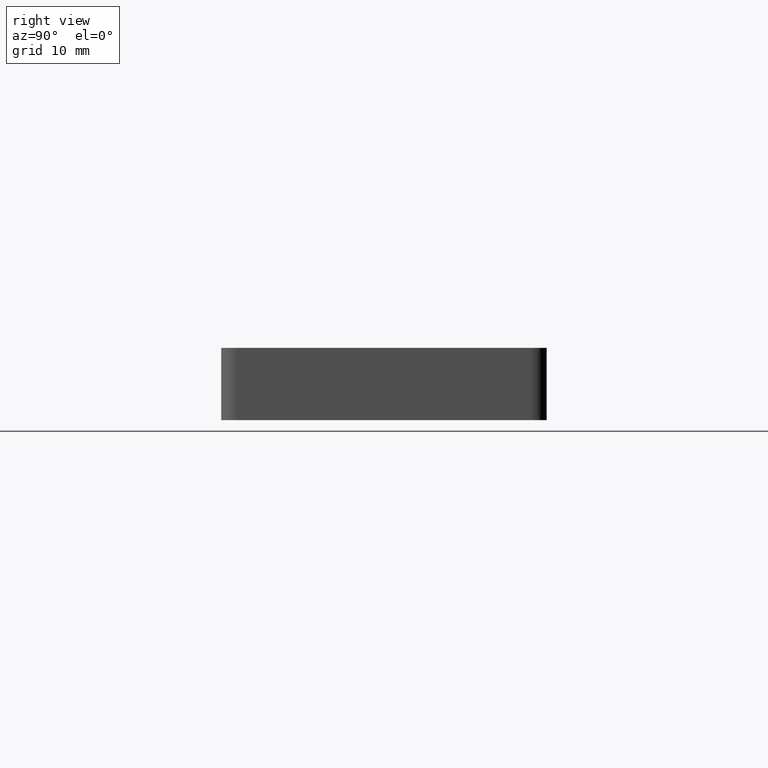
[diagram: clean part render]
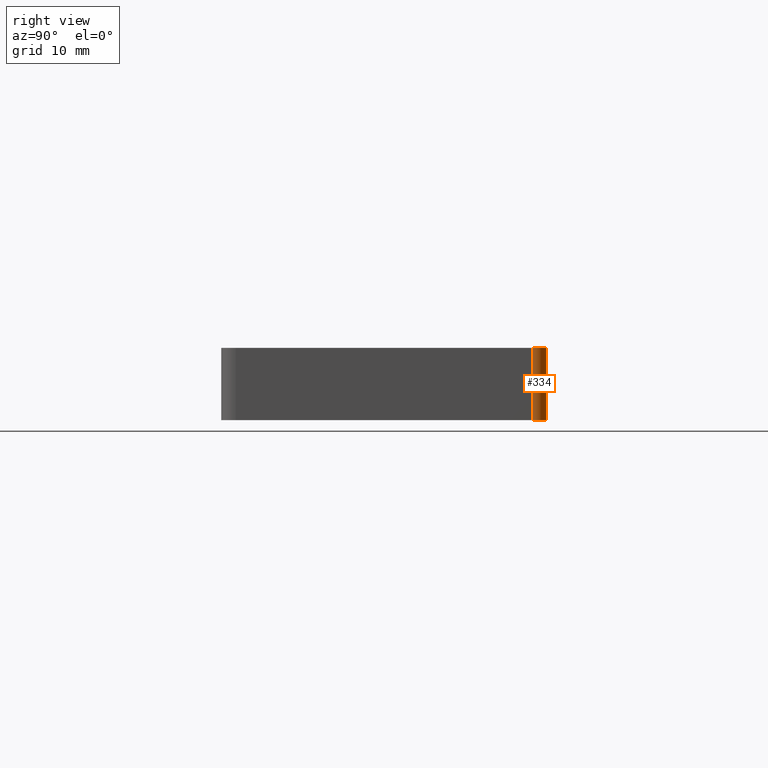
[diagram: same view with one face highlighted and labeled with its STEP entity id]
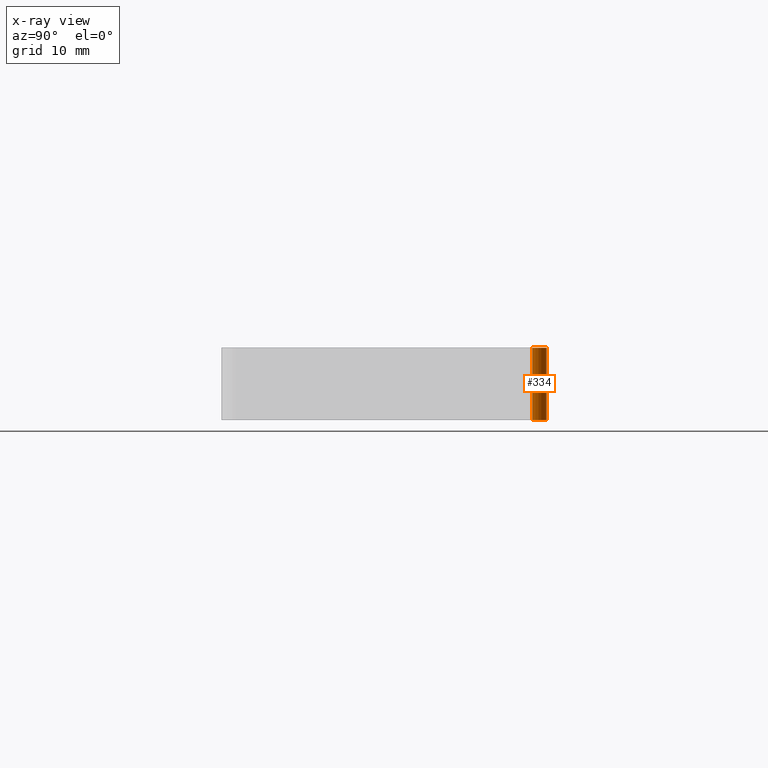
[diagram: x-ray of the same camera — body ghosted, the highlighted face saturated]
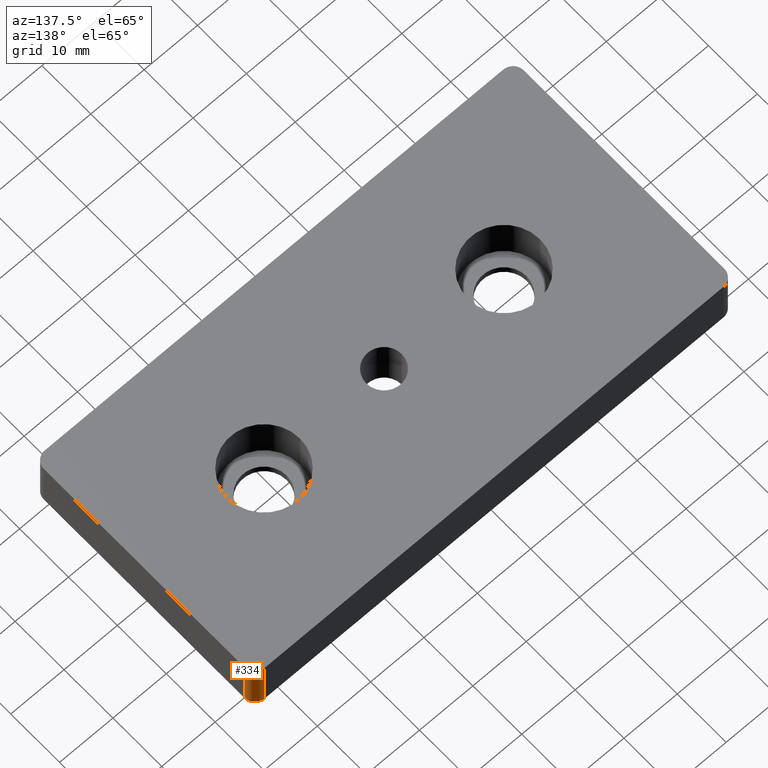
[diagram: same view with one face highlighted and labeled with its STEP entity id]
A machine part, right view. The second image highlights one B-rep face of the part: STEP entity #334.
The next image is the same camera in x-ray: the body ghosted, the highlighted face saturated — about 0% of this face is hidden behind the body in this view.
A second angle (auxiliary view) of the same face is appended — the face is thin or edge-on in the first view.
In plain terms, the highlighted cylindrical surface (edge-blend (fillet) strip) has radius 2 mm, axis along (0, 0, 1).
Its self-contained STEP definition (entity closure, byte-faithful):
#45=FACE_OUTER_BOUND('',#67,.T.);
#67=EDGE_LOOP('',(#286,#287,#288,#289));
#90=LINE('',#593,#111);
#92=LINE('',#598,#113);
#111=VECTOR('',#492,10.);
#113=VECTOR('',#498,10.);
#136=CIRCLE('',#387,2.);
#140=CIRCLE('',#396,2.);
#164=VERTEX_POINT('',#568);
#165=VERTEX_POINT('',#570);
#172=VERTEX_POINT('',#592);
#173=VERTEX_POINT('',#596);
#203=EDGE_CURVE('',#165,#164,#136,.T.);
#214=EDGE_CURVE('',#172,#165,#90,.T.);
#216=EDGE_CURVE('',#173,#172,#140,.T.);
#217=EDGE_CURVE('',#164,#173,#92,.T.);
#286=ORIENTED_EDGE('',*,*,#216,.T.);
#287=ORIENTED_EDGE('',*,*,#214,.T.);
#288=ORIENTED_EDGE('',*,*,#203,.T.);
#289=ORIENTED_EDGE('',*,*,#217,.T.);
#320=CYLINDRICAL_SURFACE('',#395,2.);
#334=ADVANCED_FACE('',(#45),#320,.T.);
#387=AXIS2_PLACEMENT_3D('',#571,#469,#470);
#395=AXIS2_PLACEMENT_3D('',#595,#494,#495);
#396=AXIS2_PLACEMENT_3D('',#597,#496,#497);
#469=DIRECTION('center_axis',(0.,0.,1.));
#470=DIRECTION('ref_axis',(0.707106781186546,0.707106781186549,0.));
#492=DIRECTION('',(0.,0.,-1.));
#494=DIRECTION('center_axis',(0.,0.,1.));
#495=DIRECTION('ref_axis',(0.707106781186546,0.707106781186549,0.));
#496=DIRECTION('center_axis',(0.,0.,-1.));
#497=DIRECTION('ref_axis',(0.707106781186546,0.707106781186549,0.));
#498=DIRECTION('',(0.,0.,1.));
#568=CARTESIAN_POINT('',(43.,22.5,0.));
#570=CARTESIAN_POINT('',(45.,20.5,0.));
#571=CARTESIAN_POINT('Origin',(43.,20.5,0.));
#592=CARTESIAN_POINT('',(45.,20.5,10.));
#593=CARTESIAN_POINT('',(45.,20.5,0.));
#595=CARTESIAN_POINT('Origin',(43.,20.5,0.));
#596=CARTESIAN_POINT('',(43.,22.5,10.));
#597=CARTESIAN_POINT('Origin',(43.,20.5,10.));
#598=CARTESIAN_POINT('',(43.,22.5,0.));